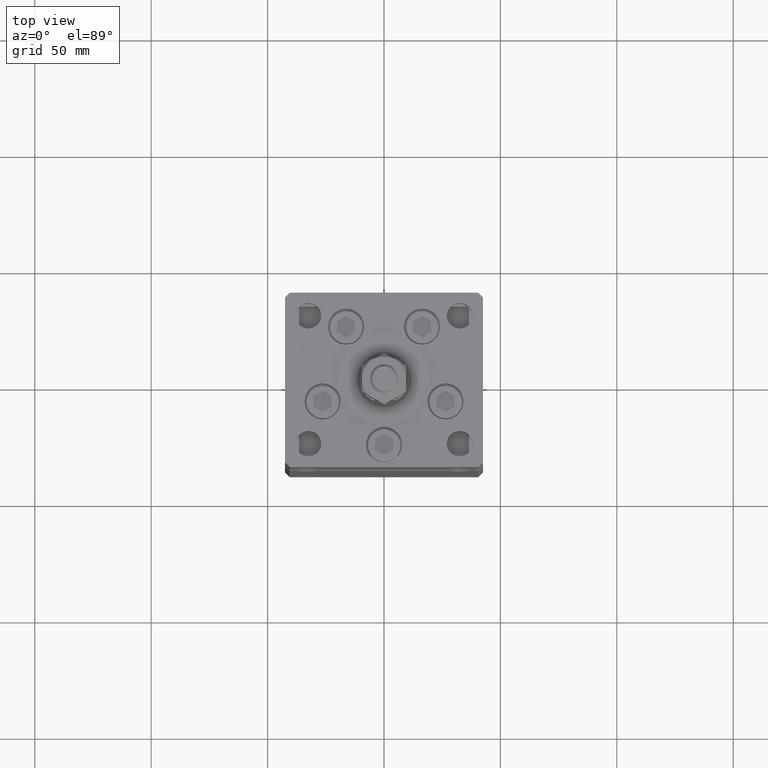
[diagram: clean part render]
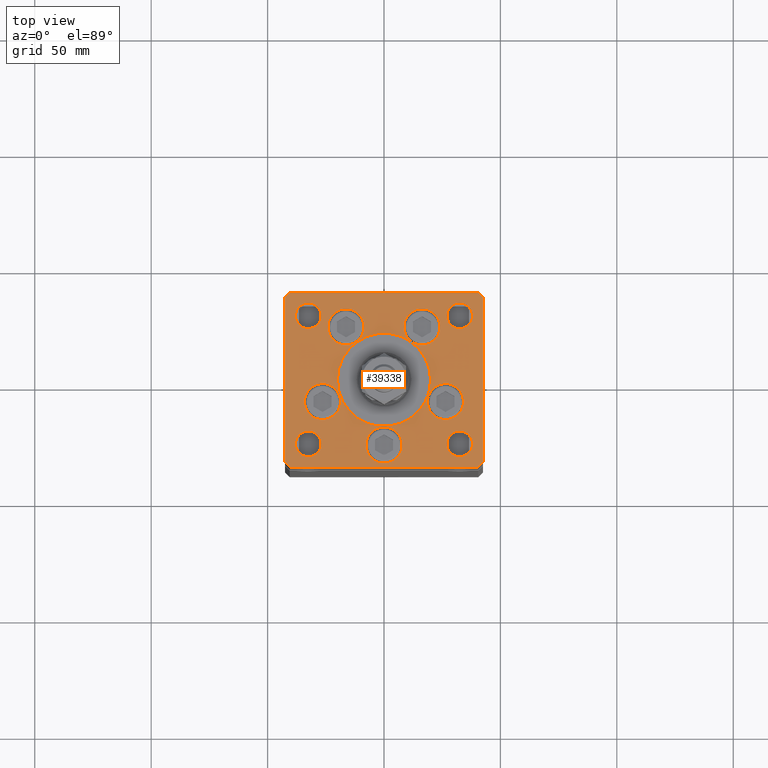
[diagram: same view with one face highlighted and labeled with its STEP entity id]
A machine part, top view. The second image highlights one B-rep face of the part: STEP entity #39338.
In plain terms, the highlighted planar face has unit normal (0, 0, 1).
Its self-contained STEP definition (entity closure, byte-faithful):
#97 = CIRCLE ( 'NONE', #11576, 5.499999999999998224 ) ;
#287 = DIRECTION ( 'NONE',  ( 1.000000000000000000, 0.000000000000000000, 0.000000000000000000 ) ) ;
#557 = CARTESIAN_POINT ( 'NONE',  ( 38.00000000000000000, 27.49999999999999645, 0.000000000000000000 ) ) ;
#711 = AXIS2_PLACEMENT_3D ( 'NONE', #14567, #31427, #48334 ) ;
#745 = VERTEX_POINT ( 'NONE', #27094 ) ;
#929 = EDGE_CURVE ( 'NONE', #30899, #29434, #7429, .T. ) ;
#1073 = AXIS2_PLACEMENT_3D ( 'NONE', #16376, #11695, #8091 ) ;
#1249 = VERTEX_POINT ( 'NONE', #8631 ) ;
#1266 = VECTOR ( 'NONE', #42792, 1000.000000000000000 ) ;
#1355 = EDGE_LOOP ( 'NONE', ( #25272, #18343 ) ) ;
#1372 = DIRECTION ( 'NONE',  ( 1.000000000000000000, 0.000000000000000000, 0.000000000000000000 ) ) ;
#1648 = DIRECTION ( 'NONE',  ( 0.000000000000000000, 0.000000000000000000, 1.000000000000000000 ) ) ;
#1911 = DIRECTION ( 'NONE',  ( 0.000000000000000000, 0.000000000000000000, 1.000000000000000000 ) ) ;
#2306 = VERTEX_POINT ( 'NONE', #8848 ) ;
#2537 = DIRECTION ( 'NONE',  ( -0.000000000000000000, -0.000000000000000000, -1.000000000000000000 ) ) ;
#2609 = EDGE_CURVE ( 'NONE', #13551, #745, #5179, .T. ) ;
#2619 = AXIS2_PLACEMENT_3D ( 'NONE', #45938, #34271, #287 ) ;
#2734 = CARTESIAN_POINT ( 'NONE',  ( -38.00000000000000000, 27.50000000000000711, 0.000000000000000000 ) ) ;
#2851 = CIRCLE ( 'NONE', #1073, 7.750000000000000000 ) ;
#2871 = VERTEX_POINT ( 'NONE', #51037 ) ;
#2874 = ORIENTED_EDGE ( 'NONE', *, *, #11989, .F. ) ;
#2942 = DIRECTION ( 'NONE',  ( 1.000000000000000000, 0.000000000000000000, 0.000000000000000000 ) ) ;
#3010 = CARTESIAN_POINT ( 'NONE',  ( -18.64865316429777664, -9.333333333333330373, 0.000000000000000000 ) ) ;
#3209 = FACE_BOUND ( 'NONE', #23186, .T. ) ;
#3570 = AXIS2_PLACEMENT_3D ( 'NONE', #32090, #15775, #24626 ) ;
#3593 = VERTEX_POINT ( 'NONE', #20084 ) ;
#3598 = VERTEX_POINT ( 'NONE', #15942 ) ;
#4423 = VECTOR ( 'NONE', #48523, 1000.000000000000000 ) ;
#4470 = ORIENTED_EDGE ( 'NONE', *, *, #26122, .T. ) ;
#4761 = EDGE_CURVE ( 'NONE', #18140, #3598, #11086, .T. ) ;
#5036 = ORIENTED_EDGE ( 'NONE', *, *, #42389, .F. ) ;
#5067 = ORIENTED_EDGE ( 'NONE', *, *, #18540, .F. ) ;
#5179 = LINE ( 'NONE', #25648, #1266 ) ;
#5181 = VERTEX_POINT ( 'NONE', #23418 ) ;
#5557 = CARTESIAN_POINT ( 'NONE',  ( 26.39865316429777664, -9.333333333333330373, 0.000000000000000000 ) ) ;
#5595 = CARTESIAN_POINT ( 'NONE',  ( 8.572913342905442491, 22.74999999999999289, 0.000000000000000000 ) ) ;
#5778 = DIRECTION ( 'NONE',  ( -0.7071067811865536790, -0.7071067811865414665, 0.000000000000000000 ) ) ;
#5894 = ORIENTED_EDGE ( 'NONE', *, *, #50597, .T. ) ;
#6376 = EDGE_LOOP ( 'NONE', ( #52037, #33587 ) ) ;
#6448 = ORIENTED_EDGE ( 'NONE', *, *, #39619, .T. ) ;
#6691 = LINE ( 'NONE', #53708, #8521 ) ;
#6766 = DIRECTION ( 'NONE',  ( 0.000000000000000000, 0.000000000000000000, 1.000000000000000000 ) ) ;
#6804 = VERTEX_POINT ( 'NONE', #24773 ) ;
#6882 = CARTESIAN_POINT ( 'NONE',  ( -26.39865316429777664, -9.333333333333330373, 0.000000000000000000 ) ) ;
#6888 = CIRCLE ( 'NONE', #35121, 7.750000000000000000 ) ;
#7093 = FACE_OUTER_BOUND ( 'NONE', #29207, .T. ) ;
#7429 = CIRCLE ( 'NONE', #26831, 5.499999999999998224 ) ;
#7942 = EDGE_CURVE ( 'NONE', #23256, #2306, #6691, .T. ) ;
#8006 = DIRECTION ( 'NONE',  ( -1.000000000000000000, 0.000000000000000000, 0.000000000000000000 ) ) ;
#8091 = DIRECTION ( 'NONE',  ( 1.000000000000000000, 0.000000000000000000, 0.000000000000000000 ) ) ;
#8131 = ORIENTED_EDGE ( 'NONE', *, *, #44192, .F. ) ;
#8258 = DIRECTION ( 'NONE',  ( 9.773090005503145261E-17, 1.000000000000000000, 0.000000000000000000 ) ) ;
#8424 = CIRCLE ( 'NONE', #28717, 7.750000000000000000 ) ;
#8481 = CARTESIAN_POINT ( 'NONE',  ( 42.50000000000001421, 35.50000000000002132, 0.000000000000000000 ) ) ;
#8521 = VECTOR ( 'NONE', #40698, 1000.000000000000114 ) ;
#8631 = CARTESIAN_POINT ( 'NONE',  ( 7.750000000000000000, -28.00000000000000000, 0.000000000000000000 ) ) ;
#8810 = CARTESIAN_POINT ( 'NONE',  ( -38.00000000000000000, -27.50000000000000355, 0.000000000000000000 ) ) ;
#8848 = CARTESIAN_POINT ( 'NONE',  ( 42.50000000000000711, -35.49999999999992895, 0.000000000000000000 ) ) ;
#8897 = EDGE_CURVE ( 'NONE', #19557, #53862, #15587, .T. ) ;
#9153 = ORIENTED_EDGE ( 'NONE', *, *, #23344, .F. ) ;
#9317 = DIRECTION ( 'NONE',  ( 1.000000000000000000, 0.000000000000000000, 0.000000000000000000 ) ) ;
#9703 = DIRECTION ( 'NONE',  ( -1.000000000000000000, 0.000000000000000000, 0.000000000000000000 ) ) ;
#10403 = CIRCLE ( 'NONE', #711, 5.499999999999998224 ) ;
#10585 = CARTESIAN_POINT ( 'NONE',  ( 32.50000000000000000, -27.50000000000000355, 0.000000000000000000 ) ) ;
#10586 = AXIS2_PLACEMENT_3D ( 'NONE', #26110, #42448, #25847 ) ;
#10825 = CARTESIAN_POINT ( 'NONE',  ( -32.50000000000000000, 27.50000000000000711, 0.000000000000000000 ) ) ;
#11086 = CIRCLE ( 'NONE', #19889, 7.750000000000000000 ) ;
#11189 = VECTOR ( 'NONE', #8258, 1000.000000000000000 ) ;
#11576 = AXIS2_PLACEMENT_3D ( 'NONE', #10825, #2537, #36256 ) ;
#11695 = DIRECTION ( 'NONE',  ( 0.000000000000000000, 0.000000000000000000, 1.000000000000000000 ) ) ;
#11781 = VERTEX_POINT ( 'NONE', #5595 ) ;
#11989 = EDGE_CURVE ( 'NONE', #38670, #24428, #10403, .T. ) ;
#12226 = DIRECTION ( 'NONE',  ( 1.000000000000000000, 0.000000000000000000, 0.000000000000000000 ) ) ;
#12422 = EDGE_CURVE ( 'NONE', #5181, #19299, #29879, .T. ) ;
#12830 = ORIENTED_EDGE ( 'NONE', *, *, #34366, .F. ) ;
#13278 = DIRECTION ( 'NONE',  ( 0.000000000000000000, 0.000000000000000000, 1.000000000000000000 ) ) ;
#13373 = ORIENTED_EDGE ( 'NONE', *, *, #27184, .T. ) ;
#13446 = CARTESIAN_POINT ( 'NONE',  ( 32.50000000000000000, 27.49999999999999645, 0.000000000000000000 ) ) ;
#13551 = VERTEX_POINT ( 'NONE', #22111 ) ;
#13763 = EDGE_CURVE ( 'NONE', #745, #26828, #28698, .T. ) ;
#13849 = DIRECTION ( 'NONE',  ( -0.000000000000000000, -0.000000000000000000, -1.000000000000000000 ) ) ;
#14082 = CARTESIAN_POINT ( 'NONE',  ( -16.32291334290544071, 22.74999999999999289, 0.000000000000000000 ) ) ;
#14095 = CIRCLE ( 'NONE', #49452, 5.499999999999998224 ) ;
#14369 = DIRECTION ( 'NONE',  ( 1.000000000000000000, 0.000000000000000000, 0.000000000000000000 ) ) ;
#14392 = VERTEX_POINT ( 'NONE', #2734 ) ;
#14451 = VERTEX_POINT ( 'NONE', #3010 ) ;
#14567 = CARTESIAN_POINT ( 'NONE',  ( -32.50000000000000000, -27.50000000000000355, 0.000000000000000000 ) ) ;
#15041 = CARTESIAN_POINT ( 'NONE',  ( -40.50000000000000711, -37.50000000000003553, 0.000000000000000000 ) ) ;
#15587 = CIRCLE ( 'NONE', #33261, 7.750000000000000000 ) ;
#15775 = DIRECTION ( 'NONE',  ( 0.000000000000000000, 0.000000000000000000, 1.000000000000000000 ) ) ;
#15901 = EDGE_CURVE ( 'NONE', #41743, #11781, #32471, .T. ) ;
#15942 = CARTESIAN_POINT ( 'NONE',  ( -8.572913342905440715, 22.74999999999999289, 0.000000000000000000 ) ) ;
#16320 = CARTESIAN_POINT ( 'NONE',  ( -40.50000000000000000, 37.49999999999997158, 0.000000000000000000 ) ) ;
#16376 = CARTESIAN_POINT ( 'NONE',  ( 0.000000000000000000, -28.00000000000000000, 0.000000000000000000 ) ) ;
#16464 = FACE_BOUND ( 'NONE', #6376, .T. ) ;
#16631 = ORIENTED_EDGE ( 'NONE', *, *, #12422, .F. ) ;
#16784 = CIRCLE ( 'NONE', #10586, 20.00000000000000000 ) ;
#17159 = CARTESIAN_POINT ( 'NONE',  ( -32.50000000000000000, -27.50000000000000355, 0.000000000000000000 ) ) ;
#18140 = VERTEX_POINT ( 'NONE', #35006 ) ;
#18343 = ORIENTED_EDGE ( 'NONE', *, *, #39970, .F. ) ;
#18436 = CARTESIAN_POINT ( 'NONE',  ( -26.39865316429777664, -9.333333333333330373, 0.000000000000000000 ) ) ;
#18540 = EDGE_CURVE ( 'NONE', #6804, #30936, #16784, .T. ) ;
#18574 = CARTESIAN_POINT ( 'NONE',  ( -27.00000000000000355, 27.50000000000000711, 0.000000000000000000 ) ) ;
#18693 = EDGE_CURVE ( 'NONE', #26828, #23256, #23608, .T. ) ;
#19152 = DIRECTION ( 'NONE',  ( -0.000000000000000000, -0.000000000000000000, -1.000000000000000000 ) ) ;
#19299 = VERTEX_POINT ( 'NONE', #557 ) ;
#19557 = VERTEX_POINT ( 'NONE', #24572 ) ;
#19889 = AXIS2_PLACEMENT_3D ( 'NONE', #14082, #30404, #1372 ) ;
#20084 = CARTESIAN_POINT ( 'NONE',  ( -7.750000000000000000, -28.00000000000000000, 0.000000000000000000 ) ) ;
#20129 = CARTESIAN_POINT ( 'NONE',  ( -42.50000000000000000, -35.50000000000004263, 0.000000000000000000 ) ) ;
#20174 = EDGE_LOOP ( 'NONE', ( #41790, #39902 ) ) ;
#20266 = ORIENTED_EDGE ( 'NONE', *, *, #7942, .T. ) ;
#20298 = CIRCLE ( 'NONE', #2619, 5.499999999999998224 ) ;
#20528 = CIRCLE ( 'NONE', #50551, 5.499999999999998224 ) ;
#21414 = ORIENTED_EDGE ( 'NONE', *, *, #39173, .F. ) ;
#22051 = CARTESIAN_POINT ( 'NONE',  ( 18.64865316429777664, -9.333333333333328596, 0.000000000000000000 ) ) ;
#22111 = CARTESIAN_POINT ( 'NONE',  ( -42.50000000000000711, 35.50000000000000000, 0.000000000000000000 ) ) ;
#22512 = VERTEX_POINT ( 'NONE', #28133 ) ;
#22536 = CARTESIAN_POINT ( 'NONE',  ( 26.39865316429777664, -9.333333333333330373, 0.000000000000000000 ) ) ;
#22712 = ORIENTED_EDGE ( 'NONE', *, *, #2609, .T. ) ;
#22909 = EDGE_LOOP ( 'NONE', ( #12830, #5036 ) ) ;
#23186 = EDGE_LOOP ( 'NONE', ( #2874, #8131 ) ) ;
#23256 = VERTEX_POINT ( 'NONE', #49825 ) ;
#23344 = EDGE_CURVE ( 'NONE', #3598, #18140, #8424, .T. ) ;
#23418 = CARTESIAN_POINT ( 'NONE',  ( 27.00000000000000355, 27.49999999999999645, 0.000000000000000000 ) ) ;
#23512 = LINE ( 'NONE', #24327, #30709 ) ;
#23608 = LINE ( 'NONE', #15041, #4423 ) ;
#23686 = AXIS2_PLACEMENT_3D ( 'NONE', #13446, #37790, #30317 ) ;
#23956 = FACE_BOUND ( 'NONE', #47981, .T. ) ;
#24226 = FACE_BOUND ( 'NONE', #20174, .T. ) ;
#24327 = CARTESIAN_POINT ( 'NONE',  ( 40.50000000000000711, 37.50000000000000711, 0.000000000000000000 ) ) ;
#24428 = VERTEX_POINT ( 'NONE', #8810 ) ;
#24572 = CARTESIAN_POINT ( 'NONE',  ( 34.14865316429777664, -9.333333333333330373, 0.000000000000000000 ) ) ;
#24626 = DIRECTION ( 'NONE',  ( 1.000000000000000000, 0.000000000000000000, 0.000000000000000000 ) ) ;
#24679 = DIRECTION ( 'NONE',  ( 0.000000000000000000, 0.000000000000000000, 1.000000000000000000 ) ) ;
#24697 = CARTESIAN_POINT ( 'NONE',  ( 24.07291334290544071, 22.74999999999999289, 0.000000000000000000 ) ) ;
#24773 = CARTESIAN_POINT ( 'NONE',  ( -20.00000000000000000, -6.938893903907228378E-15, 0.000000000000000000 ) ) ;
#24810 = CIRCLE ( 'NONE', #37142, 7.750000000000000000 ) ;
#25272 = ORIENTED_EDGE ( 'NONE', *, *, #8897, .F. ) ;
#25565 = ORIENTED_EDGE ( 'NONE', *, *, #53559, .F. ) ;
#25586 = AXIS2_PLACEMENT_3D ( 'NONE', #5557, #39263, #52846 ) ;
#25620 = CIRCLE ( 'NONE', #3570, 7.750000000000000000 ) ;
#25648 = CARTESIAN_POINT ( 'NONE',  ( -42.50000000000000711, 35.50000000000000000, 0.000000000000000000 ) ) ;
#25847 = DIRECTION ( 'NONE',  ( 1.000000000000000000, 0.000000000000000000, 0.000000000000000000 ) ) ;
#26110 = CARTESIAN_POINT ( 'NONE',  ( 0.000000000000000000, -6.938893903907228378E-15, 0.000000000000000000 ) ) ;
#26122 = EDGE_CURVE ( 'NONE', #46246, #2871, #39984, .T. ) ;
#26828 = VERTEX_POINT ( 'NONE', #44859 ) ;
#26831 = AXIS2_PLACEMENT_3D ( 'NONE', #41999, #30100, #8006 ) ;
#27094 = CARTESIAN_POINT ( 'NONE',  ( -42.50000000000000000, -35.50000000000004263, 0.000000000000000000 ) ) ;
#27184 = EDGE_CURVE ( 'NONE', #2306, #46246, #34206, .T. ) ;
#27379 = DIRECTION ( 'NONE',  ( -1.000000000000000000, -4.283267841918041508E-16, 0.000000000000000000 ) ) ;
#28133 = CARTESIAN_POINT ( 'NONE',  ( -34.14865316429777664, -9.333333333333328596, 0.000000000000000000 ) ) ;
#28160 = EDGE_LOOP ( 'NONE', ( #21414, #16631 ) ) ;
#28380 = FACE_BOUND ( 'NONE', #22909, .T. ) ;
#28698 = LINE ( 'NONE', #20129, #32552 ) ;
#28717 = AXIS2_PLACEMENT_3D ( 'NONE', #52273, #13278, #14369 ) ;
#29112 = AXIS2_PLACEMENT_3D ( 'NONE', #40821, #32784, #2942 ) ;
#29207 = EDGE_LOOP ( 'NONE', ( #49100, #49865, #20266, #13373, #4470, #44028, #36360, #22712 ) ) ;
#29309 = EDGE_LOOP ( 'NONE', ( #44048, #5894 ) ) ;
#29434 = VERTEX_POINT ( 'NONE', #34782 ) ;
#29879 = CIRCLE ( 'NONE', #23686, 5.499999999999998224 ) ;
#30100 = DIRECTION ( 'NONE',  ( -0.000000000000000000, -0.000000000000000000, -1.000000000000000000 ) ) ;
#30317 = DIRECTION ( 'NONE',  ( 1.000000000000000000, 0.000000000000000000, 0.000000000000000000 ) ) ;
#30404 = DIRECTION ( 'NONE',  ( 0.000000000000000000, 0.000000000000000000, 1.000000000000000000 ) ) ;
#30709 = VECTOR ( 'NONE', #27379, 1000.000000000000000 ) ;
#30899 = VERTEX_POINT ( 'NONE', #33785 ) ;
#30936 = VERTEX_POINT ( 'NONE', #50681 ) ;
#31427 = DIRECTION ( 'NONE',  ( 0.000000000000000000, 0.000000000000000000, 1.000000000000000000 ) ) ;
#31583 = VERTEX_POINT ( 'NONE', #18574 ) ;
#32090 = CARTESIAN_POINT ( 'NONE',  ( 0.000000000000000000, -28.00000000000000000, 0.000000000000000000 ) ) ;
#32238 = FACE_BOUND ( 'NONE', #1355, .T. ) ;
#32471 = CIRCLE ( 'NONE', #36891, 7.750000000000000000 ) ;
#32552 = VECTOR ( 'NONE', #42715, 1000.000000000000000 ) ;
#32784 = DIRECTION ( 'NONE',  ( -0.000000000000000000, 0.000000000000000000, 1.000000000000000000 ) ) ;
#33132 = CARTESIAN_POINT ( 'NONE',  ( 42.50000000000000711, -35.49999999999992895, 0.000000000000000000 ) ) ;
#33261 = AXIS2_PLACEMENT_3D ( 'NONE', #22536, #6766, #35242 ) ;
#33587 = ORIENTED_EDGE ( 'NONE', *, *, #53651, .F. ) ;
#33785 = CARTESIAN_POINT ( 'NONE',  ( 27.00000000000000355, -27.50000000000000355, 0.000000000000000000 ) ) ;
#33789 = CARTESIAN_POINT ( 'NONE',  ( 0.000000000000000000, -6.938893903907228378E-15, 0.000000000000000000 ) ) ;
#33921 = EDGE_CURVE ( 'NONE', #2871, #45419, #23512, .T. ) ;
#34206 = LINE ( 'NONE', #33132, #11189 ) ;
#34271 = DIRECTION ( 'NONE',  ( 0.000000000000000000, 0.000000000000000000, 1.000000000000000000 ) ) ;
#34366 = EDGE_CURVE ( 'NONE', #14451, #22512, #6888, .T. ) ;
#34719 = AXIS2_PLACEMENT_3D ( 'NONE', #33789, #1911, #42379 ) ;
#34782 = CARTESIAN_POINT ( 'NONE',  ( 38.00000000000000000, -27.50000000000000355, 0.000000000000000000 ) ) ;
#35006 = CARTESIAN_POINT ( 'NONE',  ( -24.07291334290544071, 22.74999999999999289, 0.000000000000000000 ) ) ;
#35121 = AXIS2_PLACEMENT_3D ( 'NONE', #18436, #43880, #9317 ) ;
#35242 = DIRECTION ( 'NONE',  ( 1.000000000000000000, 0.000000000000000000, 0.000000000000000000 ) ) ;
#35456 = CARTESIAN_POINT ( 'NONE',  ( -40.50000000000000000, 37.49999999999997158, 0.000000000000000000 ) ) ;
#35592 = CIRCLE ( 'NONE', #38228, 7.750000000000000000 ) ;
#36256 = DIRECTION ( 'NONE',  ( -1.000000000000000000, 0.000000000000000000, 0.000000000000000000 ) ) ;
#36360 = ORIENTED_EDGE ( 'NONE', *, *, #51511, .T. ) ;
#36891 = AXIS2_PLACEMENT_3D ( 'NONE', #45700, #24679, #12226 ) ;
#37142 = AXIS2_PLACEMENT_3D ( 'NONE', #6882, #44221, #48374 ) ;
#37297 = VECTOR ( 'NONE', #5778, 1000.000000000000000 ) ;
#37337 = LINE ( 'NONE', #16320, #37297 ) ;
#37472 = FACE_BOUND ( 'NONE', #50329, .T. ) ;
#37790 = DIRECTION ( 'NONE',  ( 0.000000000000000000, 0.000000000000000000, 1.000000000000000000 ) ) ;
#38228 = AXIS2_PLACEMENT_3D ( 'NONE', #39223, #1648, #47836 ) ;
#38432 = DIRECTION ( 'NONE',  ( 1.000000000000000000, 0.000000000000000000, 0.000000000000000000 ) ) ;
#38670 = VERTEX_POINT ( 'NONE', #50489 ) ;
#38944 = AXIS2_PLACEMENT_3D ( 'NONE', #17159, #50915, #38432 ) ;
#39173 = EDGE_CURVE ( 'NONE', #19299, #5181, #20298, .T. ) ;
#39223 = CARTESIAN_POINT ( 'NONE',  ( 16.32291334290544071, 22.74999999999999289, 0.000000000000000000 ) ) ;
#39263 = DIRECTION ( 'NONE',  ( 0.000000000000000000, 0.000000000000000000, 1.000000000000000000 ) ) ;
#39338 = ADVANCED_FACE ( 'NONE', ( #54363, #37472, #16464, #32238, #24226, #28380, #44993, #41087, #3209, #7093, #23956 ), #53548, .T. ) ;
#39619 = EDGE_CURVE ( 'NONE', #29434, #30899, #14095, .T. ) ;
#39902 = ORIENTED_EDGE ( 'NONE', *, *, #40824, .F. ) ;
#39970 = EDGE_CURVE ( 'NONE', #53862, #19557, #51216, .T. ) ;
#39984 = LINE ( 'NONE', #43876, #48222 ) ;
#40698 = DIRECTION ( 'NONE',  ( 0.7071067811865474617, 0.7071067811865474617, 0.000000000000000000 ) ) ;
#40821 = CARTESIAN_POINT ( 'NONE',  ( 0.000000000000000000, 0.000000000000000000, 0.000000000000000000 ) ) ;
#40824 = EDGE_CURVE ( 'NONE', #3593, #1249, #25620, .T. ) ;
#41087 = FACE_BOUND ( 'NONE', #28160, .T. ) ;
#41743 = VERTEX_POINT ( 'NONE', #24697 ) ;
#41790 = ORIENTED_EDGE ( 'NONE', *, *, #50461, .F. ) ;
#41999 = CARTESIAN_POINT ( 'NONE',  ( 32.50000000000000000, -27.50000000000000355, 0.000000000000000000 ) ) ;
#42379 = DIRECTION ( 'NONE',  ( 1.000000000000000000, 0.000000000000000000, 0.000000000000000000 ) ) ;
#42389 = EDGE_CURVE ( 'NONE', #22512, #14451, #24810, .T. ) ;
#42417 = ORIENTED_EDGE ( 'NONE', *, *, #929, .T. ) ;
#42448 = DIRECTION ( 'NONE',  ( 0.000000000000000000, 0.000000000000000000, 1.000000000000000000 ) ) ;
#42715 = DIRECTION ( 'NONE',  ( 0.7071067811865487940, -0.7071067811865463515, 0.000000000000000000 ) ) ;
#42780 = EDGE_LOOP ( 'NONE', ( #5067, #25565 ) ) ;
#42792 = DIRECTION ( 'NONE',  ( 9.773090005503134168E-17, -1.000000000000000000, 0.000000000000000000 ) ) ;
#43401 = EDGE_CURVE ( 'NONE', #31583, #14392, #97, .T. ) ;
#43876 = CARTESIAN_POINT ( 'NONE',  ( 42.50000000000001421, 35.50000000000002132, 0.000000000000000000 ) ) ;
#43880 = DIRECTION ( 'NONE',  ( 0.000000000000000000, 0.000000000000000000, 1.000000000000000000 ) ) ;
#44028 = ORIENTED_EDGE ( 'NONE', *, *, #33921, .T. ) ;
#44048 = ORIENTED_EDGE ( 'NONE', *, *, #43401, .T. ) ;
#44192 = EDGE_CURVE ( 'NONE', #24428, #38670, #47791, .T. ) ;
#44221 = DIRECTION ( 'NONE',  ( 0.000000000000000000, 0.000000000000000000, 1.000000000000000000 ) ) ;
#44431 = DIRECTION ( 'NONE',  ( -0.7071067811865524577, 0.7071067811865426878, 0.000000000000000000 ) ) ;
#44466 = CIRCLE ( 'NONE', #34719, 20.00000000000000000 ) ;
#44859 = CARTESIAN_POINT ( 'NONE',  ( -40.50000000000000711, -37.50000000000003553, 0.000000000000000000 ) ) ;
#44993 = FACE_BOUND ( 'NONE', #29309, .T. ) ;
#45419 = VERTEX_POINT ( 'NONE', #35456 ) ;
#45700 = CARTESIAN_POINT ( 'NONE',  ( 16.32291334290544071, 22.74999999999999289, 0.000000000000000000 ) ) ;
#45938 = CARTESIAN_POINT ( 'NONE',  ( 32.50000000000000000, 27.49999999999999645, 0.000000000000000000 ) ) ;
#46246 = VERTEX_POINT ( 'NONE', #8481 ) ;
#47791 = CIRCLE ( 'NONE', #38944, 5.499999999999998224 ) ;
#47836 = DIRECTION ( 'NONE',  ( 1.000000000000000000, 0.000000000000000000, 0.000000000000000000 ) ) ;
#47981 = EDGE_LOOP ( 'NONE', ( #6448, #42417 ) ) ;
#48222 = VECTOR ( 'NONE', #44431, 1000.000000000000000 ) ;
#48334 = DIRECTION ( 'NONE',  ( 1.000000000000000000, 0.000000000000000000, 0.000000000000000000 ) ) ;
#48374 = DIRECTION ( 'NONE',  ( 1.000000000000000000, 0.000000000000000000, 0.000000000000000000 ) ) ;
#48497 = DIRECTION ( 'NONE',  ( -1.000000000000000000, 0.000000000000000000, 0.000000000000000000 ) ) ;
#48523 = DIRECTION ( 'NONE',  ( 1.000000000000000000, 1.370645709413773283E-15, 0.000000000000000000 ) ) ;
#49051 = ORIENTED_EDGE ( 'NONE', *, *, #4761, .F. ) ;
#49100 = ORIENTED_EDGE ( 'NONE', *, *, #13763, .T. ) ;
#49452 = AXIS2_PLACEMENT_3D ( 'NONE', #10585, #19152, #48497 ) ;
#49825 = CARTESIAN_POINT ( 'NONE',  ( 40.50000000000001421, -37.49999999999992184, 0.000000000000000000 ) ) ;
#49865 = ORIENTED_EDGE ( 'NONE', *, *, #18693, .T. ) ;
#50329 = EDGE_LOOP ( 'NONE', ( #9153, #49051 ) ) ;
#50461 = EDGE_CURVE ( 'NONE', #1249, #3593, #2851, .T. ) ;
#50489 = CARTESIAN_POINT ( 'NONE',  ( -27.00000000000000355, -27.50000000000000355, 0.000000000000000000 ) ) ;
#50551 = AXIS2_PLACEMENT_3D ( 'NONE', #51758, #13849, #9703 ) ;
#50597 = EDGE_CURVE ( 'NONE', #14392, #31583, #20528, .T. ) ;
#50681 = CARTESIAN_POINT ( 'NONE',  ( 20.00000000000000000, -4.489600305612522259E-15, 0.000000000000000000 ) ) ;
#50915 = DIRECTION ( 'NONE',  ( 0.000000000000000000, 0.000000000000000000, 1.000000000000000000 ) ) ;
#51037 = CARTESIAN_POINT ( 'NONE',  ( 40.50000000000000711, 37.50000000000000711, 0.000000000000000000 ) ) ;
#51216 = CIRCLE ( 'NONE', #25586, 7.750000000000000000 ) ;
#51511 = EDGE_CURVE ( 'NONE', #45419, #13551, #37337, .T. ) ;
#51758 = CARTESIAN_POINT ( 'NONE',  ( -32.50000000000000000, 27.50000000000000711, 0.000000000000000000 ) ) ;
#52037 = ORIENTED_EDGE ( 'NONE', *, *, #15901, .F. ) ;
#52273 = CARTESIAN_POINT ( 'NONE',  ( -16.32291334290544071, 22.74999999999999289, 0.000000000000000000 ) ) ;
#52846 = DIRECTION ( 'NONE',  ( 1.000000000000000000, 0.000000000000000000, 0.000000000000000000 ) ) ;
#53548 = PLANE ( 'NONE',  #29112 ) ;
#53559 = EDGE_CURVE ( 'NONE', #30936, #6804, #44466, .T. ) ;
#53651 = EDGE_CURVE ( 'NONE', #11781, #41743, #35592, .T. ) ;
#53708 = CARTESIAN_POINT ( 'NONE',  ( 40.50000000000001421, -37.49999999999992184, 0.000000000000000000 ) ) ;
#53862 = VERTEX_POINT ( 'NONE', #22051 ) ;
#54363 = FACE_BOUND ( 'NONE', #42780, .T. ) ;